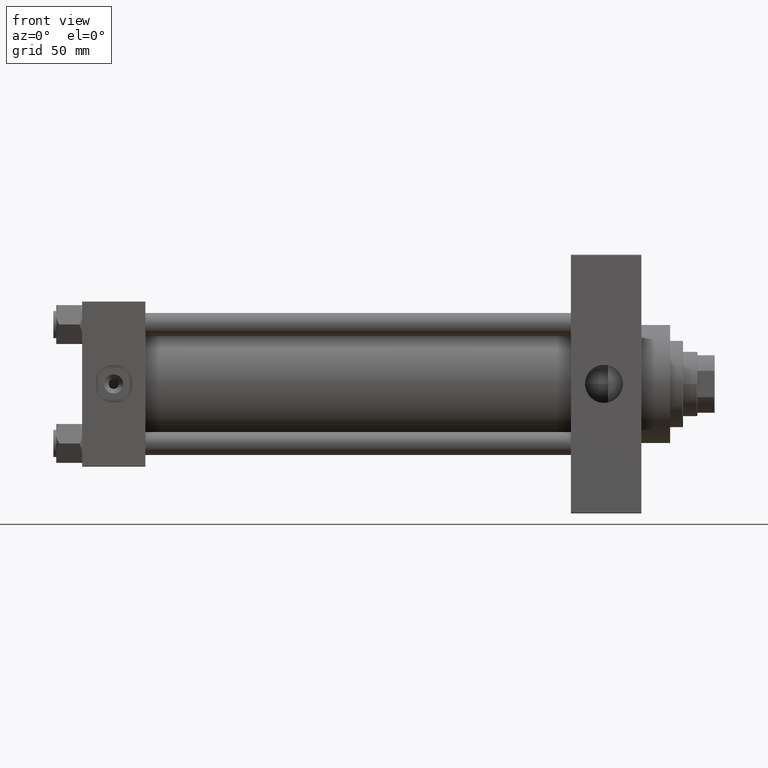
[diagram: clean part render]
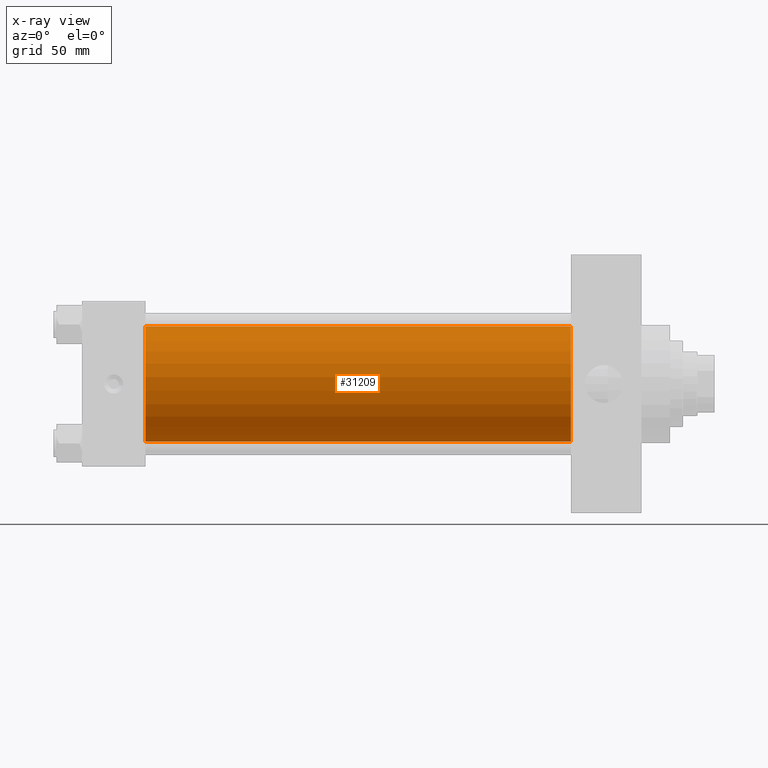
[diagram: x-ray — body ghosted, one internal face saturated and labeled with its STEP entity id]
A machine part, front view, then the same camera in x-ray: the body is ghosted and one INTERNAL B-rep face — a face not visible from any outside direction — is saturated and labeled: STEP entity #31209.
In plain terms, the highlighted cylindrical surface (partial cylindrical patch) has radius 40 mm, axis along (-1, -0, -0).
Its self-contained STEP definition (entity closure, byte-faithful):
#552 = CARTESIAN_POINT ( 'NONE',  ( 44.00000000000000000, -2.602085213965210642E-15, 40.00000000000000000 ) ) ;
#643 = AXIS2_PLACEMENT_3D ( 'NONE', #31446, #5226, #27906 ) ;
#3010 = CIRCLE ( 'NONE', #643, 40.00000000000000000 ) ;
#5226 = DIRECTION ( 'NONE',  ( 1.000000000000000000, 0.000000000000000000, 0.000000000000000000 ) ) ;
#6494 = DIRECTION ( 'NONE',  ( 0.000000000000000000, 0.000000000000000000, 1.000000000000000000 ) ) ;
#10963 = ORIENTED_EDGE ( 'NONE', *, *, #33661, .F. ) ;
#11908 = VERTEX_POINT ( 'NONE', #36035 ) ;
#13403 = CIRCLE ( 'NONE', #41515, 40.00000000000000000 ) ;
#14584 = ORIENTED_EDGE ( 'NONE', *, *, #45924, .T. ) ;
#17509 = DIRECTION ( 'NONE',  ( 0.000000000000000000, 0.000000000000000000, -1.000000000000000000 ) ) ;
#20109 = VERTEX_POINT ( 'NONE', #552 ) ;
#20522 = EDGE_LOOP ( 'NONE', ( #14584, #42004, #10963, #44452 ) ) ;
#22480 = LINE ( 'NONE', #26247, #37675 ) ;
#24905 = CARTESIAN_POINT ( 'NONE',  ( 339.9999999999999432, -2.602085213965210642E-15, 40.00000000000000000 ) ) ;
#25067 = CARTESIAN_POINT ( 'NONE',  ( 339.9999999999999432, -2.602085213965210642E-15, 0.000000000000000000 ) ) ;
#25377 = VERTEX_POINT ( 'NONE', #46793 ) ;
#26247 = CARTESIAN_POINT ( 'NONE',  ( 339.9999999999999432, 2.296501982624201990E-15, -40.00000000000000000 ) ) ;
#26443 = CARTESIAN_POINT ( 'NONE',  ( 339.9999999999999432, -2.602085213965210642E-15, 40.00000000000000000 ) ) ;
#26649 = CYLINDRICAL_SURFACE ( 'NONE', #44108, 40.00000000000000000 ) ;
#26893 = DIRECTION ( 'NONE',  ( -1.000000000000000000, -0.000000000000000000, -0.000000000000000000 ) ) ;
#27906 = DIRECTION ( 'NONE',  ( 0.000000000000000000, 0.000000000000000000, -1.000000000000000000 ) ) ;
#29914 = CARTESIAN_POINT ( 'NONE',  ( 339.9999999999999432, -2.602085213965210642E-15, 0.000000000000000000 ) ) ;
#31209 = ADVANCED_FACE ( 'NONE', ( #49286 ), #26649, .F. ) ;
#31446 = CARTESIAN_POINT ( 'NONE',  ( 44.00000000000000000, -2.602085213965210642E-15, 0.000000000000000000 ) ) ;
#33661 = EDGE_CURVE ( 'NONE', #20109, #11908, #3010, .T. ) ;
#35260 = LINE ( 'NONE', #26443, #48267 ) ;
#35597 = EDGE_CURVE ( 'NONE', #25377, #11908, #22480, .T. ) ;
#36035 = CARTESIAN_POINT ( 'NONE',  ( 44.00000000000000000, 2.296501982624201990E-15, -40.00000000000000000 ) ) ;
#37675 = VECTOR ( 'NONE', #38092, 1000.000000000000000 ) ;
#38092 = DIRECTION ( 'NONE',  ( -1.000000000000000000, -0.000000000000000000, -0.000000000000000000 ) ) ;
#39579 = EDGE_CURVE ( 'NONE', #45652, #20109, #35260, .T. ) ;
#40425 = DIRECTION ( 'NONE',  ( 1.000000000000000000, 0.000000000000000000, 0.000000000000000000 ) ) ;
#41515 = AXIS2_PLACEMENT_3D ( 'NONE', #25067, #40425, #17509 ) ;
#41796 = DIRECTION ( 'NONE',  ( -1.000000000000000000, -0.000000000000000000, -0.000000000000000000 ) ) ;
#42004 = ORIENTED_EDGE ( 'NONE', *, *, #35597, .T. ) ;
#44108 = AXIS2_PLACEMENT_3D ( 'NONE', #29914, #26893, #6494 ) ;
#44452 = ORIENTED_EDGE ( 'NONE', *, *, #39579, .F. ) ;
#45652 = VERTEX_POINT ( 'NONE', #24905 ) ;
#45924 = EDGE_CURVE ( 'NONE', #45652, #25377, #13403, .T. ) ;
#46793 = CARTESIAN_POINT ( 'NONE',  ( 339.9999999999999432, 2.296501982624201990E-15, -40.00000000000000000 ) ) ;
#48267 = VECTOR ( 'NONE', #41796, 1000.000000000000000 ) ;
#49286 = FACE_OUTER_BOUND ( 'NONE', #20522, .T. ) ;